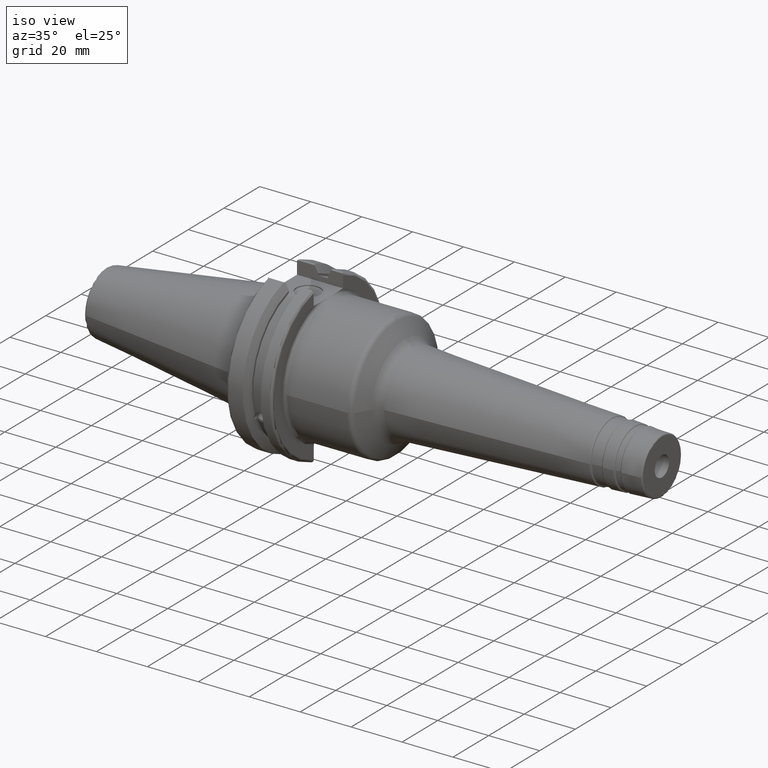
[diagram: clean part render]
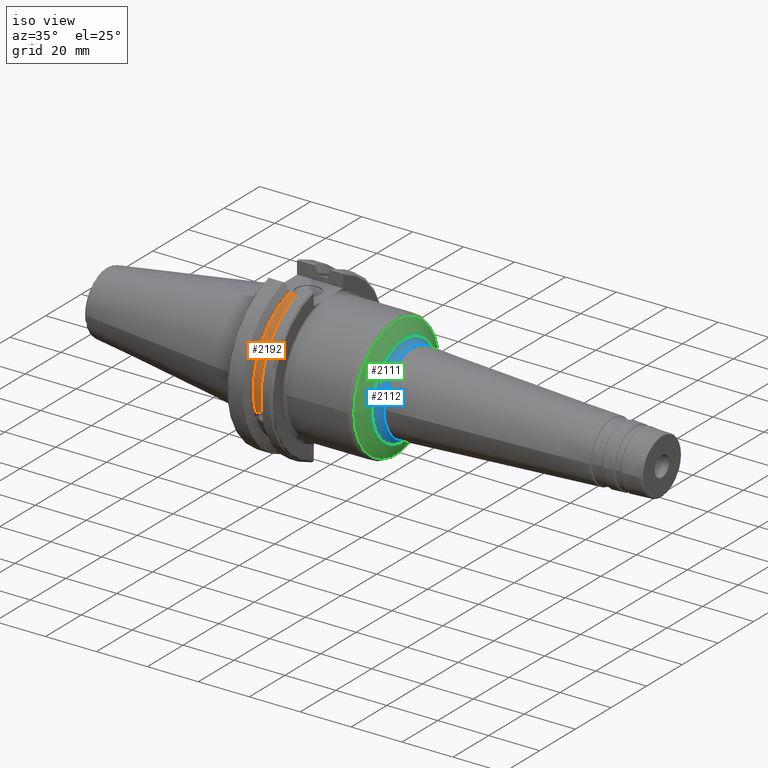
[diagram: same view with three faces highlighted in distinct colors, each labeled with its STEP entity id]
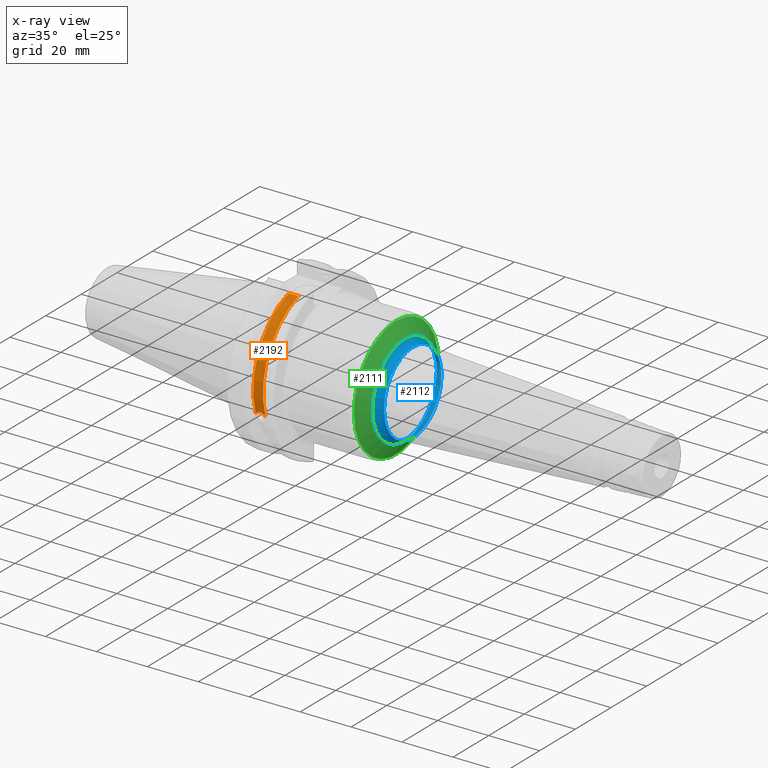
[diagram: x-ray of the same camera — body ghosted, the three highlighted faces saturated]
A machine part, iso view with three faces highlighted in distinct colors.
The next image is the same camera in x-ray (body ghosted, the three faces saturated) — at least one of them is partly hidden behind the body in this view.
Their STEP definitions:

[orange] entity #2192 — the highlighted cylindrical surface (partial cylindrical patch) has radius 28.15 mm, axis along (1, 0, 0).
#80=CYLINDRICAL_SURFACE('',#2513,28.15);
#92=B_SPLINE_CURVE_WITH_KNOTS('',3,(#3672,#3673,#3674,#3675,#3676,#3677,
#3678,#3679,#3680,#3681,#3682,#3683,#3684,#3685),.UNSPECIFIED.,.F.,.F.,
(4,2,2,2,2,2,4),(0.401639126382403,0.474814416953736,0.553950208498303,
0.63308600004287,0.712221791587437,0.791357583132004,0.864532873703336),
 .UNSPECIFIED.);
#234=LINE('',#4094,#329);
#329=VECTOR('',#3038,10.);
#486=FACE_OUTER_BOUND('',#608,.T.);
#608=EDGE_LOOP('',(#2053,#2054,#2055,#2056));
#787=CIRCLE('',#2512,28.15);
#788=CIRCLE('',#2514,28.15);
#906=VERTEX_POINT('',#3669);
#907=VERTEX_POINT('',#3671);
#989=VERTEX_POINT('',#4091);
#990=VERTEX_POINT('',#4093);
#1188=EDGE_CURVE('',#907,#906,#92,.T.);
#1298=EDGE_CURVE('',#990,#989,#234,.T.);
#1375=EDGE_CURVE('',#989,#907,#787,.T.);
#1376=EDGE_CURVE('',#990,#906,#788,.T.);
#2053=ORIENTED_EDGE('',*,*,#1188,.T.);
#2054=ORIENTED_EDGE('',*,*,#1376,.F.);
#2055=ORIENTED_EDGE('',*,*,#1298,.T.);
#2056=ORIENTED_EDGE('',*,*,#1375,.T.);
#2192=ADVANCED_FACE('',(#486),#80,.T.);
#2512=AXIS2_PLACEMENT_3D('',#4300,#3208,#3209);
#2513=AXIS2_PLACEMENT_3D('',#4301,#3210,#3211);
#2514=AXIS2_PLACEMENT_3D('',#4302,#3212,#3213);
#3038=DIRECTION('',(-1.,0.,0.));
#3208=DIRECTION('center_axis',(1.,0.,0.));
#3209=DIRECTION('ref_axis',(0.,0.,-1.));
#3210=DIRECTION('center_axis',(1.,0.,0.));
#3211=DIRECTION('ref_axis',(0.,-0.887654187951484,0.46051063246378));
#3212=DIRECTION('center_axis',(1.,0.,0.));
#3213=DIRECTION('ref_axis',(0.,0.,-1.));
#3669=CARTESIAN_POINT('',(13.091,-26.734714844398,-8.81348524641212));
#3671=CARTESIAN_POINT('',(9.261,-26.734714844398,-8.81348524641212));
#3672=CARTESIAN_POINT('Ctrl Pts',(9.261,-26.734714844398,-8.81348524641212));
#3673=CARTESIAN_POINT('Ctrl Pts',(9.36723057097183,-26.8086519721597,-8.58920529678291));
#3674=CARTESIAN_POINT('Ctrl Pts',(9.51872013770509,-26.8729987454904,-8.38416529997369));
#3675=CARTESIAN_POINT('Ctrl Pts',(9.87747062657411,-26.9778908791383,-8.04056861831091));
#3676=CARTESIAN_POINT('Ctrl Pts',(10.1135450112988,-27.0233016799732,-7.88512567185902));
#3677=CARTESIAN_POINT('Ctrl Pts',(10.6309125426388,-27.0826966800569,-7.6786444840004));
#3678=CARTESIAN_POINT('Ctrl Pts',(10.9122140281848,-27.0968804077294,-7.62768458768513));
#3679=CARTESIAN_POINT('Ctrl Pts',(11.4397859718152,-27.0968804077294,-7.62768458768513));
#3680=CARTESIAN_POINT('Ctrl Pts',(11.7210874573612,-27.0826966800569,-7.6786444840004));
#3681=CARTESIAN_POINT('Ctrl Pts',(12.2384549887012,-27.0233016799732,-7.88512567185903));
#3682=CARTESIAN_POINT('Ctrl Pts',(12.4745293734259,-26.9778908791383,-8.04056861831091));
#3683=CARTESIAN_POINT('Ctrl Pts',(12.8332798622949,-26.8729987454904,-8.3841652999737));
#3684=CARTESIAN_POINT('Ctrl Pts',(12.9847694290282,-26.8086519721597,-8.58920529678291));
#3685=CARTESIAN_POINT('Ctrl Pts',(13.091,-26.734714844398,-8.81348524641212));
#4091=CARTESIAN_POINT('',(9.261,-8.19,26.932255754021));
#4093=CARTESIAN_POINT('',(13.091,-8.19,26.932255754021));
#4094=CARTESIAN_POINT('',(11.176,-8.19,26.932255754021));
#4300=CARTESIAN_POINT('Origin',(9.261,0.,0.));
#4301=CARTESIAN_POINT('Origin',(11.176,0.,0.));
#4302=CARTESIAN_POINT('Origin',(13.091,0.,0.));

[blue] entity #2112 — the highlighted toroidal blend (fillet) surface has major radius 20.1216 mm and minor (blend) radius 4 mm.
#406=FACE_OUTER_BOUND('',#515,.T.);
#515=EDGE_LOOP('',(#1563,#1564,#1565,#1566,#1567,#1568,#1569,#1570));
#672=CIRCLE('',#2292,16.1271135053516);
#673=CIRCLE('',#2293,16.1271135053516);
#674=CIRCLE('',#2294,16.1271135053516);
#692=CIRCLE('',#2319,18.1216316443699);
#693=CIRCLE('',#2320,18.1216316443699);
#694=CIRCLE('',#2321,18.1216316443699);
#695=CIRCLE('',#2323,4.);
#842=VERTEX_POINT('',#3361);
#843=VERTEX_POINT('',#3363);
#844=VERTEX_POINT('',#3365);
#865=VERTEX_POINT('',#3464);
#866=VERTEX_POINT('',#3465);
#867=VERTEX_POINT('',#3467);
#1103=EDGE_CURVE('',#843,#842,#672,.T.);
#1104=EDGE_CURVE('',#844,#843,#673,.T.);
#1105=EDGE_CURVE('',#842,#844,#674,.T.);
#1131=EDGE_CURVE('',#865,#866,#692,.T.);
#1132=EDGE_CURVE('',#867,#865,#693,.T.);
#1134=EDGE_CURVE('',#866,#867,#694,.T.);
#1135=EDGE_CURVE('',#866,#844,#695,.T.);
#1563=ORIENTED_EDGE('',*,*,#1131,.T.);
#1564=ORIENTED_EDGE('',*,*,#1135,.T.);
#1565=ORIENTED_EDGE('',*,*,#1104,.T.);
#1566=ORIENTED_EDGE('',*,*,#1103,.T.);
#1567=ORIENTED_EDGE('',*,*,#1105,.T.);
#1568=ORIENTED_EDGE('',*,*,#1135,.F.);
#1569=ORIENTED_EDGE('',*,*,#1134,.T.);
#1570=ORIENTED_EDGE('',*,*,#1132,.T.);
#2081=TOROIDAL_SURFACE('',#2322,20.1216316443699,4.);
#2112=ADVANCED_FACE('',(#406),#2081,.F.);
#2292=AXIS2_PLACEMENT_3D('',#3364,#2683,#2684);
#2293=AXIS2_PLACEMENT_3D('',#3366,#2685,#2686);
#2294=AXIS2_PLACEMENT_3D('',#3367,#2687,#2688);
#2319=AXIS2_PLACEMENT_3D('',#3466,#2741,#2742);
#2320=AXIS2_PLACEMENT_3D('',#3468,#2743,#2744);
#2321=AXIS2_PLACEMENT_3D('',#3470,#2746,#2747);
#2322=AXIS2_PLACEMENT_3D('',#3471,#2748,#2749);
#2323=AXIS2_PLACEMENT_3D('',#3472,#2750,#2751);
#2683=DIRECTION('center_axis',(-1.,0.,0.));
#2684=DIRECTION('ref_axis',(0.,-1.,3.06161699786838E-17));
#2685=DIRECTION('center_axis',(-1.,0.,0.));
#2686=DIRECTION('ref_axis',(0.,-1.,3.06161699786838E-17));
#2687=DIRECTION('center_axis',(-1.,0.,0.));
#2688=DIRECTION('ref_axis',(0.,-1.,3.06161699786838E-17));
#2741=DIRECTION('center_axis',(1.,0.,0.));
#2742=DIRECTION('ref_axis',(0.,-1.,3.06161699786838E-17));
#2743=DIRECTION('center_axis',(1.,0.,0.));
#2744=DIRECTION('ref_axis',(0.,-1.,3.06161699786838E-17));
#2746=DIRECTION('center_axis',(1.,0.,0.));
#2747=DIRECTION('ref_axis',(0.,-1.,3.06161699786838E-17));
#2748=DIRECTION('center_axis',(1.,0.,0.));
#2749=DIRECTION('ref_axis',(0.,0.,-1.));
#2750=DIRECTION('center_axis',(0.,-1.,-1.22464679914735E-16));
#2751=DIRECTION('ref_axis',(0.,-1.22464679914735E-16,1.));
#3361=CARTESIAN_POINT('',(52.1688463908891,-16.1271135053516,-1.97500179338149E-15));
#3363=CARTESIAN_POINT('',(52.1688463908891,16.1271135053516,-4.93750448345372E-15));
#3364=CARTESIAN_POINT('Origin',(52.1688463908891,0.,-2.46875224172686E-15));
#3365=CARTESIAN_POINT('',(52.1688463908891,-1.97500179338149E-15,16.1271135053516));
#3366=CARTESIAN_POINT('Origin',(52.1688463908891,0.,-2.46875224172686E-15));
#3367=CARTESIAN_POINT('Origin',(52.1688463908891,0.,-2.46875224172686E-15));
#3464=CARTESIAN_POINT('',(48.9140886007231,18.1216316443699,-1.10962990943025E-15));
#3465=CARTESIAN_POINT('',(48.9140886007231,-2.2192598188605E-15,18.1216316443699));
#3466=CARTESIAN_POINT('Origin',(48.9140886007231,0.,-2.77407477357562E-15));
#3467=CARTESIAN_POINT('',(48.9140886007231,-18.1216316443699,-2.2192598188605E-15));
#3468=CARTESIAN_POINT('Origin',(48.9140886007231,0.,-2.77407477357562E-15));
#3470=CARTESIAN_POINT('Origin',(48.9140886007231,0.,-2.77407477357562E-15));
#3471=CARTESIAN_POINT('Origin',(52.3781902158609,0.,0.));
#3472=CARTESIAN_POINT('Origin',(52.3781902158609,-2.46418917868997E-15,
20.1216316443699));

[green] entity #2111 — the highlighted conical surface has half-angle 60 deg.
#181=LINE('',#3469,#276);
#276=VECTOR('',#2745,20.4953889641521);
#367=CONICAL_SURFACE('',#2318,20.4953889641521,1.0471975511966);
#405=FACE_OUTER_BOUND('',#514,.T.);
#514=EDGE_LOOP('',(#1555,#1556,#1557,#1558,#1559,#1560,#1561,#1562));
#688=CIRCLE('',#2314,23.75);
#689=CIRCLE('',#2315,23.75);
#691=CIRCLE('',#2317,23.75);
#692=CIRCLE('',#2319,18.1216316443699);
#693=CIRCLE('',#2320,18.1216316443699);
#694=CIRCLE('',#2321,18.1216316443699);
#862=VERTEX_POINT('',#3456);
#863=VERTEX_POINT('',#3457);
#864=VERTEX_POINT('',#3459);
#865=VERTEX_POINT('',#3464);
#866=VERTEX_POINT('',#3465);
#867=VERTEX_POINT('',#3467);
#1127=EDGE_CURVE('',#862,#863,#688,.T.);
#1128=EDGE_CURVE('',#863,#864,#689,.T.);
#1130=EDGE_CURVE('',#864,#862,#691,.T.);
#1131=EDGE_CURVE('',#865,#866,#692,.T.);
#1132=EDGE_CURVE('',#867,#865,#693,.T.);
#1133=EDGE_CURVE('',#867,#863,#181,.T.);
#1134=EDGE_CURVE('',#866,#867,#694,.T.);
#1555=ORIENTED_EDGE('',*,*,#1131,.F.);
#1556=ORIENTED_EDGE('',*,*,#1132,.F.);
#1557=ORIENTED_EDGE('',*,*,#1133,.T.);
#1558=ORIENTED_EDGE('',*,*,#1127,.F.);
#1559=ORIENTED_EDGE('',*,*,#1130,.F.);
#1560=ORIENTED_EDGE('',*,*,#1128,.F.);
#1561=ORIENTED_EDGE('',*,*,#1133,.F.);
#1562=ORIENTED_EDGE('',*,*,#1134,.F.);
#2111=ADVANCED_FACE('',(#405),#367,.T.);
#2314=AXIS2_PLACEMENT_3D('',#3458,#2731,#2732);
#2315=AXIS2_PLACEMENT_3D('',#3460,#2733,#2734);
#2317=AXIS2_PLACEMENT_3D('',#3462,#2737,#2738);
#2318=AXIS2_PLACEMENT_3D('',#3463,#2739,#2740);
#2319=AXIS2_PLACEMENT_3D('',#3466,#2741,#2742);
#2320=AXIS2_PLACEMENT_3D('',#3468,#2743,#2744);
#2321=AXIS2_PLACEMENT_3D('',#3470,#2746,#2747);
#2731=DIRECTION('center_axis',(-1.,0.,0.));
#2732=DIRECTION('ref_axis',(0.,-1.,3.06161699786838E-17));
#2733=DIRECTION('center_axis',(-1.,0.,0.));
#2734=DIRECTION('ref_axis',(0.,-1.,3.06161699786838E-17));
#2737=DIRECTION('center_axis',(-1.,0.,0.));
#2738=DIRECTION('ref_axis',(0.,-1.,3.06161699786838E-17));
#2739=DIRECTION('center_axis',(-1.,0.,0.));
#2740=DIRECTION('ref_axis',(0.,1.,0.));
#2741=DIRECTION('center_axis',(1.,0.,0.));
#2742=DIRECTION('ref_axis',(0.,-1.,3.06161699786838E-17));
#2743=DIRECTION('center_axis',(1.,0.,0.));
#2744=DIRECTION('ref_axis',(0.,-1.,3.06161699786838E-17));
#2745=DIRECTION('',(-0.5,-0.866025403784439,-1.06057523872491E-16));
#2746=DIRECTION('center_axis',(1.,0.,0.));
#2747=DIRECTION('ref_axis',(0.,-1.,3.06161699786838E-17));
#3456=CARTESIAN_POINT('',(45.6645486155017,23.75,-7.27134036993741E-15));
#3457=CARTESIAN_POINT('',(45.6645486155017,-23.75,-2.90853614797496E-15));
#3458=CARTESIAN_POINT('Origin',(45.6645486155017,0.,-3.6356701849687E-15));
#3459=CARTESIAN_POINT('',(45.6645486155017,-2.90853614797496E-15,23.75));
#3460=CARTESIAN_POINT('Origin',(45.6645486155017,0.,-3.6356701849687E-15));
#3462=CARTESIAN_POINT('Origin',(45.6645486155017,0.,-3.6356701849687E-15));
#3463=CARTESIAN_POINT('Origin',(47.543599173156,0.,0.));
#3464=CARTESIAN_POINT('',(48.9140886007231,18.1216316443699,-1.10962990943025E-15));
#3465=CARTESIAN_POINT('',(48.9140886007231,-2.2192598188605E-15,18.1216316443699));
#3466=CARTESIAN_POINT('Origin',(48.9140886007231,0.,-2.77407477357562E-15));
#3467=CARTESIAN_POINT('',(48.9140886007231,-18.1216316443699,-2.2192598188605E-15));
#3468=CARTESIAN_POINT('Origin',(48.9140886007231,0.,-2.77407477357562E-15));
#3469=CARTESIAN_POINT('',(47.543599173156,-20.4953889641521,-2.50996124922288E-15));
#3470=CARTESIAN_POINT('Origin',(48.9140886007231,0.,-2.77407477357562E-15));